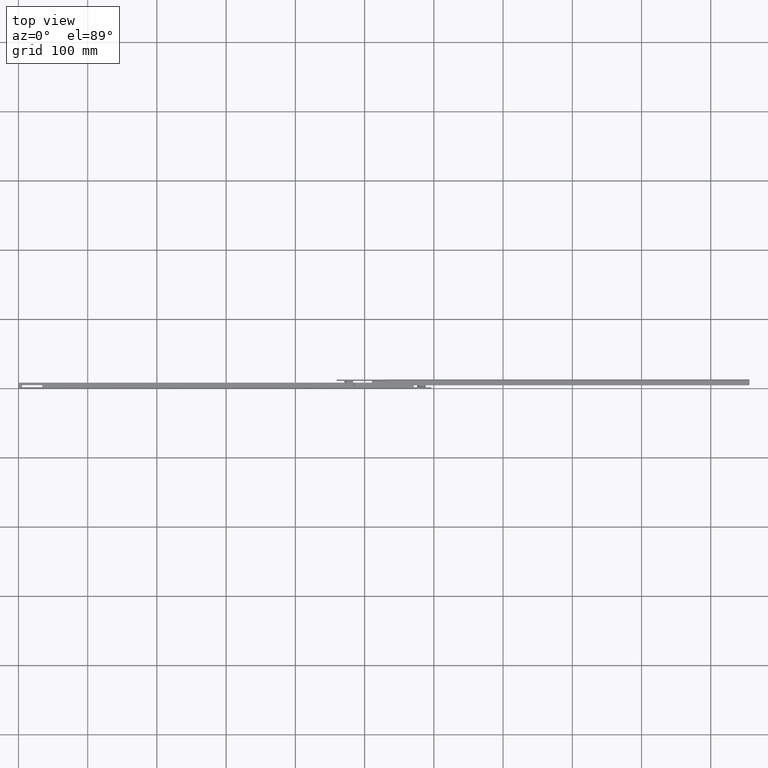
[diagram: clean part render]
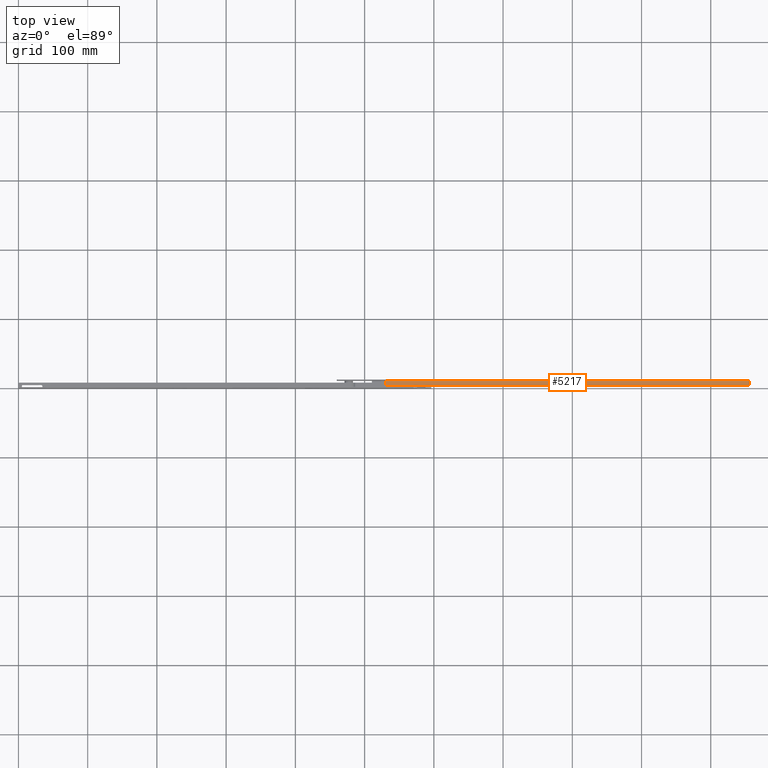
[diagram: same view with one face highlighted and labeled with its STEP entity id]
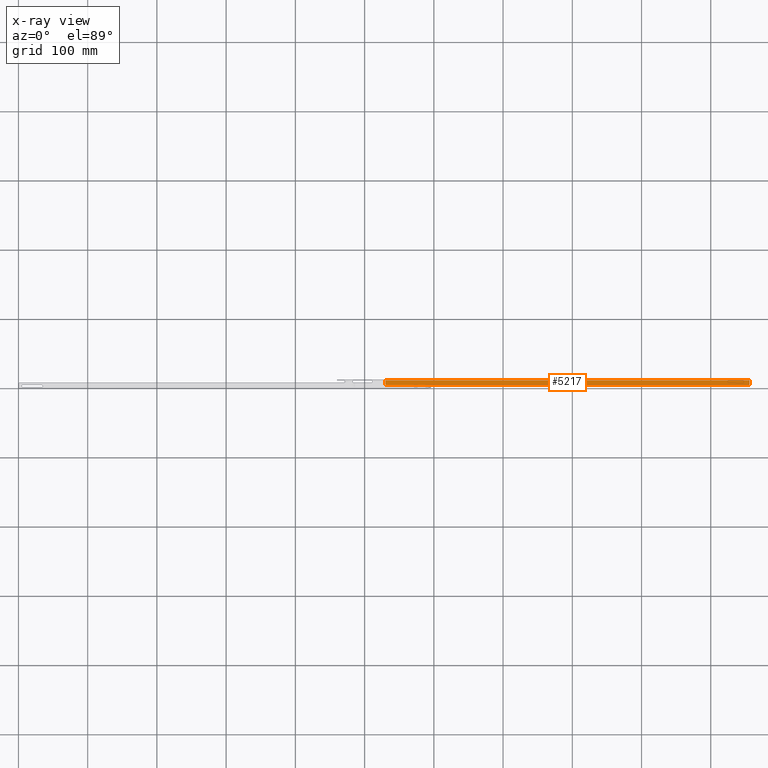
[diagram: x-ray of the same camera — body ghosted, the highlighted face saturated]
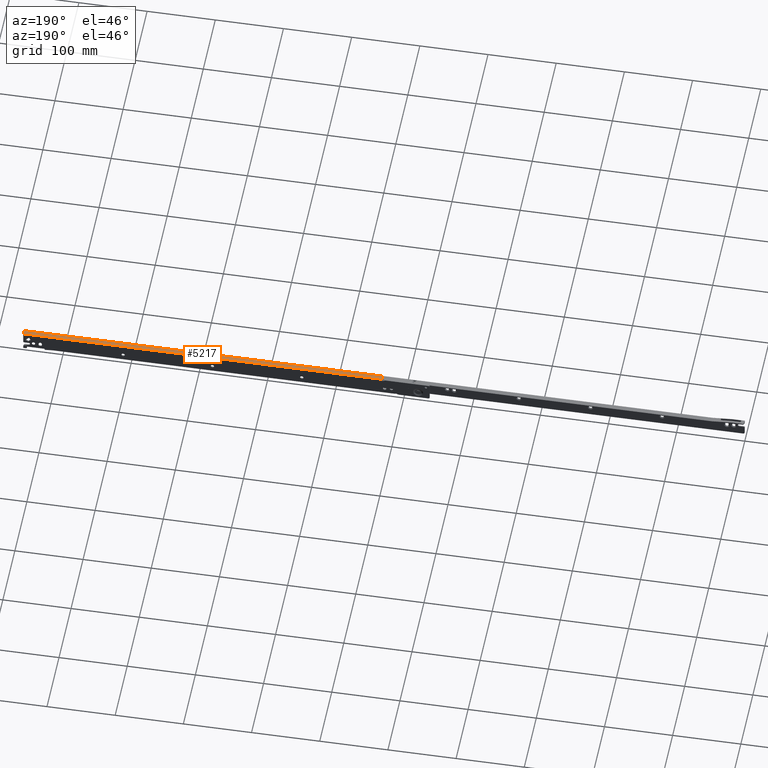
[diagram: same view with one face highlighted and labeled with its STEP entity id]
A machine part, top view. The second image highlights one B-rep face of the part: STEP entity #5217.
The next image is the same camera in x-ray: the body ghosted, the highlighted face saturated — about 0% of this face is hidden behind the body in this view.
A second angle (auxiliary view) of the same face is appended — the face is thin or edge-on in the first view.
In plain terms, the highlighted face is a freeform B-spline surface patch.
Its self-contained STEP definition (entity closure, byte-faithful):
#2840=CARTESIAN_POINT('',(-25.0,5.999999999999770,27.500000000000000));
#2841=VERTEX_POINT('',#2840);
#2842=CARTESIAN_POINT('',(-23.500000000000000,4.499999999999725,27.500000000000000));
#2843=VERTEX_POINT('',#2842);
#2844=CARTESIAN_POINT('',(-25.0,5.999999999999770,27.500000000000000));
#2845=CARTESIAN_POINT('',(-25.0,4.499999999999769,27.500000000000004));
#2846=CARTESIAN_POINT('',(-23.500000000000000,4.499999999999770,27.500000000000000));
#2854=(BOUNDED_CURVE()B_SPLINE_CURVE(2,(#2844,#2845,#2846),.UNSPECIFIED.,.F.,.U.)CURVE()GEOMETRIC_REPRESENTATION_ITEM()QUASI_UNIFORM_CURVE()RATIONAL_B_SPLINE_CURVE((1.0,0.707106781186548,1.0))REPRESENTATION_ITEM(''));
#2855=EDGE_CURVE('',#2841,#2843,#2854,.T.);
#3890=CARTESIAN_POINT('',(-25.0,10.999999999999799,27.500000000000000));
#3891=VERTEX_POINT('',#3890);
#3905=CARTESIAN_POINT('',(501.0,10.999999999999799,27.500000000000000));
#3906=VERTEX_POINT('',#3905);
#3907=CARTESIAN_POINT('',(501.0,10.999999999999799,27.500000000000000));
#3908=CARTESIAN_POINT('',(-25.0,10.999999999999799,27.500000000000000));
#3909=QUASI_UNIFORM_CURVE('',1,(#3907,#3908),.UNSPECIFIED.,.F.,.U.);
#3910=EDGE_CURVE('',#3906,#3891,#3909,.T.);
#4386=CARTESIAN_POINT('',(501.0,5.999999999999780,27.500000000000000));
#4387=VERTEX_POINT('',#4386);
#4393=CARTESIAN_POINT('',(499.500000000000000,4.499999999999725,27.500000000000000));
#4394=VERTEX_POINT('',#4393);
#4395=CARTESIAN_POINT('',(499.500000000000000,4.499999999999770,27.500000000000000));
#4396=CARTESIAN_POINT('',(500.999999999999890,4.499999999999769,27.500000000000004));
#4397=CARTESIAN_POINT('',(501.0,5.999999999999770,27.500000000000000));
#4405=(BOUNDED_CURVE()B_SPLINE_CURVE(2,(#4395,#4396,#4397),.UNSPECIFIED.,.F.,.U.)CURVE()GEOMETRIC_REPRESENTATION_ITEM()QUASI_UNIFORM_CURVE()RATIONAL_B_SPLINE_CURVE((1.0,0.707106781186548,1.0))REPRESENTATION_ITEM(''));
#4406=EDGE_CURVE('',#4394,#4387,#4405,.T.);
#4700=CARTESIAN_POINT('',(499.500000000000000,4.499999999999725,27.500000000000000));
#4701=CARTESIAN_POINT('',(-23.500000000000000,4.499999999999725,27.500000000000000));
#4702=QUASI_UNIFORM_CURVE('',1,(#4700,#4701),.UNSPECIFIED.,.F.,.U.);
#4703=EDGE_CURVE('',#4394,#2843,#4702,.T.);
#5184=CARTESIAN_POINT('',(501.0,5.999999999999780,27.500000000000000));
#5185=CARTESIAN_POINT('',(501.0,10.999999999999799,27.500000000000000));
#5186=QUASI_UNIFORM_CURVE('',1,(#5184,#5185),.UNSPECIFIED.,.F.,.U.);
#5187=EDGE_CURVE('',#4387,#3906,#5186,.T.);
#5200=CARTESIAN_POINT('',(-51.273698980509913,4.175325012597982,27.500000000000000));
#5201=CARTESIAN_POINT('',(527.273713088929300,4.175325012597982,27.500000000000000));
#5202=CARTESIAN_POINT('',(-51.273698980509913,11.324675161745130,27.500000000000000));
#5203=CARTESIAN_POINT('',(527.273713088929300,11.324675161745130,27.500000000000000));
#5204=B_SPLINE_SURFACE_WITH_KNOTS('',1,1,((#5200,#5202),(#5201,#5203)),.UNSPECIFIED.,.F.,.F.,.U.,(2,2),(2,2),(0.0,578.547412069439250),(0.0,7.149350149147146),.UNSPECIFIED.);
#5205=CARTESIAN_POINT('',(-25.0,10.999999999999799,27.500000000000000));
#5206=CARTESIAN_POINT('',(-25.0,5.999999999999770,27.500000000000000));
#5207=QUASI_UNIFORM_CURVE('',1,(#5205,#5206),.UNSPECIFIED.,.F.,.U.);
#5208=EDGE_CURVE('',#3891,#2841,#5207,.T.);
#5209=ORIENTED_EDGE('',*,*,#5208,.T.);
#5210=ORIENTED_EDGE('',*,*,#2855,.T.);
#5211=ORIENTED_EDGE('',*,*,#4703,.F.);
#5212=ORIENTED_EDGE('',*,*,#4406,.T.);
#5213=ORIENTED_EDGE('',*,*,#5187,.T.);
#5214=ORIENTED_EDGE('',*,*,#3910,.T.);
#5215=EDGE_LOOP('',(#5209,#5210,#5211,#5212,#5213,#5214));
#5216=FACE_OUTER_BOUND('',#5215,.T.);
#5217=ADVANCED_FACE('',(#5216),#5204,.T.);